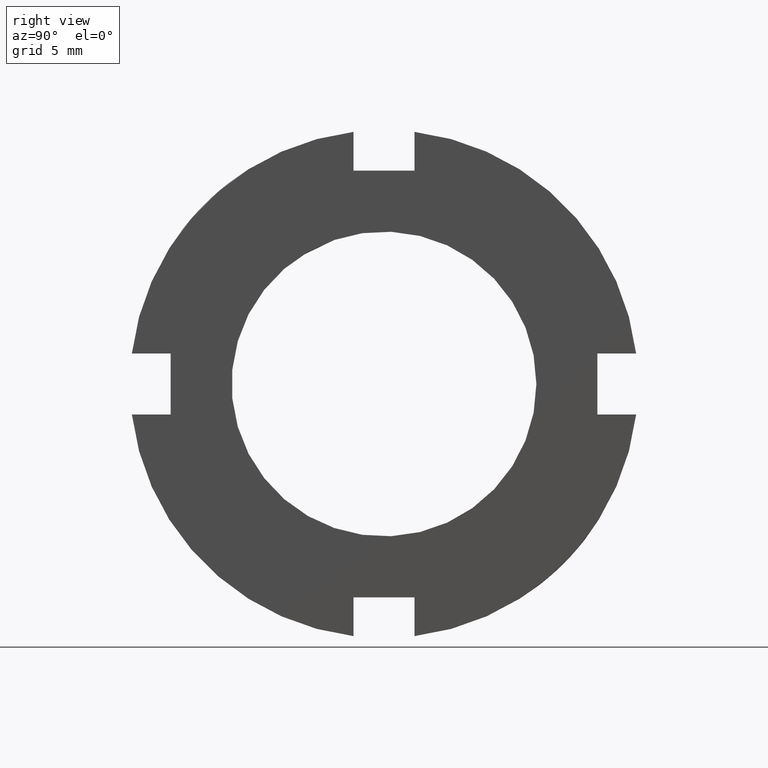
[diagram: clean part render]
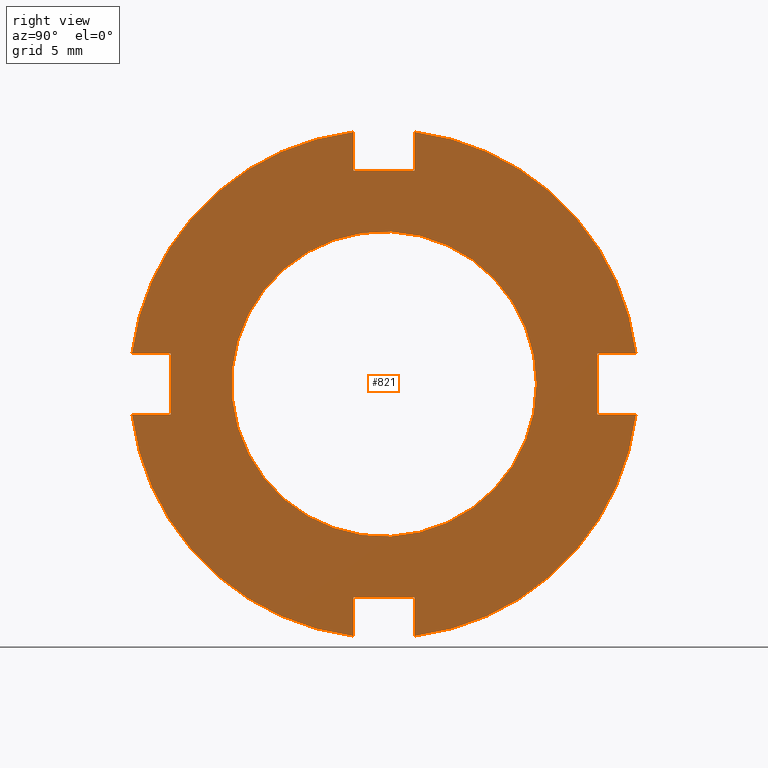
[diagram: same view with one face highlighted and labeled with its STEP entity id]
A machine part, right view. The second image highlights one B-rep face of the part: STEP entity #821.
In plain terms, the highlighted planar face has unit normal (1, 0, 0).
Its self-contained STEP definition (entity closure, byte-faithful):
#259=CARTESIAN_POINT('',(7.999999999999998,-1.500000000000002,-10.499999999999996));
#260=VERTEX_POINT('',#259);
#267=CARTESIAN_POINT('',(7.999999999999998,-1.500000000000002,-12.409673645990853));
#268=VERTEX_POINT('',#267);
#269=CARTESIAN_POINT('',(7.999999999999998,-1.500000000000002,-12.409673645990853));
#270=DIRECTION('',(0.0,0.0,1.0));
#271=VECTOR('',#270,1.909673645990857);
#272=LINE('',#269,#271);
#273=EDGE_CURVE('',#268,#260,#272,.T.);
#299=CARTESIAN_POINT('',(7.999999999999998,1.499999999999998,-12.409673645990853));
#300=VERTEX_POINT('',#299);
#307=CARTESIAN_POINT('',(7.999999999999998,1.499999999999998,-10.499999999999996));
#308=VERTEX_POINT('',#307);
#309=CARTESIAN_POINT('',(7.999999999999998,1.499999999999998,-10.499999999999996));
#310=DIRECTION('',(0.0,0.0,-1.0));
#311=VECTOR('',#310,1.909673645990857);
#312=LINE('',#309,#311);
#313=EDGE_CURVE('',#308,#300,#312,.T.);
#338=CARTESIAN_POINT('',(7.999999999999998,-1.500000000000003,-10.499999999999996));
#339=DIRECTION('',(0.0,1.0,0.0));
#340=VECTOR('',#339,3.000000000000001);
#341=LINE('',#338,#340);
#342=EDGE_CURVE('',#260,#308,#341,.T.);
#369=CARTESIAN_POINT('',(7.999999999999998,-10.499999999999996,1.500000000000001));
#370=VERTEX_POINT('',#369);
#377=CARTESIAN_POINT('',(7.999999999999998,-12.409673645990853,1.500000000000002));
#378=VERTEX_POINT('',#377);
#379=CARTESIAN_POINT('',(7.999999999999998,-12.409673645990853,1.500000000000001));
#380=DIRECTION('',(0.0,1.0,0.0));
#381=VECTOR('',#380,1.909673645990857);
#382=LINE('',#379,#381);
#383=EDGE_CURVE('',#378,#370,#382,.T.);
#409=CARTESIAN_POINT('',(7.999999999999998,-12.409673645990853,-1.499999999999998));
#410=VERTEX_POINT('',#409);
#417=CARTESIAN_POINT('',(7.999999999999998,-10.499999999999996,-1.499999999999999));
#418=VERTEX_POINT('',#417);
#419=CARTESIAN_POINT('',(7.999999999999998,-10.499999999999996,-1.499999999999999));
#420=DIRECTION('',(0.0,-1.0,0.0));
#421=VECTOR('',#420,1.909673645990857);
#422=LINE('',#419,#421);
#423=EDGE_CURVE('',#418,#410,#422,.T.);
#448=CARTESIAN_POINT('',(7.999999999999998,-10.499999999999996,1.500000000000002));
#449=DIRECTION('',(0.0,0.0,-1.0));
#450=VECTOR('',#449,3.000000000000001);
#451=LINE('',#448,#450);
#452=EDGE_CURVE('',#370,#418,#451,.T.);
#479=CARTESIAN_POINT('',(7.999999999999998,1.500000000000001,10.499999999999996));
#480=VERTEX_POINT('',#479);
#487=CARTESIAN_POINT('',(7.999999999999998,1.500000000000001,12.409673645990853));
#488=VERTEX_POINT('',#487);
#489=CARTESIAN_POINT('',(7.999999999999998,1.500000000000001,12.409673645990853));
#490=DIRECTION('',(0.0,0.0,-1.0));
#491=VECTOR('',#490,1.909673645990857);
#492=LINE('',#489,#491);
#493=EDGE_CURVE('',#488,#480,#492,.T.);
#519=CARTESIAN_POINT('',(7.999999999999998,-1.499999999999999,12.409673645990853));
#520=VERTEX_POINT('',#519);
#527=CARTESIAN_POINT('',(7.999999999999998,-1.500000000000000,10.499999999999996));
#528=VERTEX_POINT('',#527);
#529=CARTESIAN_POINT('',(7.999999999999998,-1.499999999999999,10.499999999999996));
#530=DIRECTION('',(0.0,0.0,1.0));
#531=VECTOR('',#530,1.909673645990857);
#532=LINE('',#529,#531);
#533=EDGE_CURVE('',#528,#520,#532,.T.);
#558=CARTESIAN_POINT('',(7.999999999999998,1.500000000000001,10.499999999999996));
#559=DIRECTION('',(0.0,-1.0,0.0));
#560=VECTOR('',#559,3.000000000000001);
#561=LINE('',#558,#560);
#562=EDGE_CURVE('',#480,#528,#561,.T.);
#674=CARTESIAN_POINT('',(7.999999999999998,12.409673645990853,1.500000000000000));
#675=VERTEX_POINT('',#674);
#676=CARTESIAN_POINT('',(7.999999999999998,0.0,0.0));
#677=DIRECTION('',(1.0,0.0,0.0));
#678=DIRECTION('',(0.0,1.0,0.0));
#679=AXIS2_PLACEMENT_3D('',#676,#677,#678);
#680=CIRCLE('',#679,12.499999999999996);
#681=EDGE_CURVE('',#675,#488,#680,.T.);
#699=CARTESIAN_POINT('',(7.999999999999998,0.0,0.0));
#700=DIRECTION('',(1.0,0.0,0.0));
#701=DIRECTION('',(0.0,1.0,0.0));
#702=AXIS2_PLACEMENT_3D('',#699,#700,#701);
#703=CIRCLE('',#702,12.499999999999996);
#704=EDGE_CURVE('',#520,#378,#703,.T.);
#729=CARTESIAN_POINT('',(7.999999999999998,12.409673645990853,-1.500000000000000));
#730=VERTEX_POINT('',#729);
#737=CARTESIAN_POINT('',(7.999999999999998,0.0,0.0));
#738=DIRECTION('',(1.0,0.0,0.0));
#739=DIRECTION('',(0.0,1.0,0.0));
#740=AXIS2_PLACEMENT_3D('',#737,#738,#739);
#741=CIRCLE('',#740,12.499999999999996);
#742=EDGE_CURVE('',#300,#730,#741,.T.);
#756=CARTESIAN_POINT('',(7.999999999999998,0.0,0.0));
#757=DIRECTION('',(1.0,0.0,0.0));
#758=DIRECTION('',(0.0,1.0,0.0));
#759=AXIS2_PLACEMENT_3D('',#756,#757,#758);
#760=CIRCLE('',#759,12.499999999999996);
#761=EDGE_CURVE('',#410,#268,#760,.T.);
#768=CARTESIAN_POINT('',(7.999999999999998,9.999999999999998,0.0));
#769=DIRECTION('',(1.0,0.0,0.0));
#770=DIRECTION('',(0.0,0.0,-1.0));
#771=AXIS2_PLACEMENT_3D('',#768,#769,#770);
#772=PLANE('',#771);
#773=ORIENTED_EDGE('',*,*,#273,.T.);
#774=ORIENTED_EDGE('',*,*,#342,.T.);
#775=ORIENTED_EDGE('',*,*,#313,.T.);
#776=ORIENTED_EDGE('',*,*,#742,.T.);
#777=CARTESIAN_POINT('',(7.999999999999998,10.499999999999996,-1.500000000000000));
#778=VERTEX_POINT('',#777);
#779=CARTESIAN_POINT('',(7.999999999999998,12.409673645990853,-1.500000000000000));
#780=DIRECTION('',(0.0,-1.0,0.0));
#781=VECTOR('',#780,1.909673645990857);
#782=LINE('',#779,#781);
#783=EDGE_CURVE('',#730,#778,#782,.T.);
#784=ORIENTED_EDGE('',*,*,#783,.T.);
#785=CARTESIAN_POINT('',(7.999999999999998,10.499999999999996,1.500000000000000));
#786=VERTEX_POINT('',#785);
#787=CARTESIAN_POINT('',(7.999999999999998,10.499999999999996,-1.500000000000000));
#788=DIRECTION('',(0.0,0.0,1.0));
#789=VECTOR('',#788,3.000000000000001);
#790=LINE('',#787,#789);
#791=EDGE_CURVE('',#778,#786,#790,.T.);
#792=ORIENTED_EDGE('',*,*,#791,.T.);
#793=CARTESIAN_POINT('',(7.999999999999998,10.499999999999996,1.500000000000000));
#794=DIRECTION('',(0.0,1.0,0.0));
#795=VECTOR('',#794,1.909673645990857);
#796=LINE('',#793,#795);
#797=EDGE_CURVE('',#786,#675,#796,.T.);
#798=ORIENTED_EDGE('',*,*,#797,.T.);
#799=ORIENTED_EDGE('',*,*,#681,.T.);
#800=ORIENTED_EDGE('',*,*,#493,.T.);
#801=ORIENTED_EDGE('',*,*,#562,.T.);
#802=ORIENTED_EDGE('',*,*,#533,.T.);
#803=ORIENTED_EDGE('',*,*,#704,.T.);
#804=ORIENTED_EDGE('',*,*,#383,.T.);
#805=ORIENTED_EDGE('',*,*,#452,.T.);
#806=ORIENTED_EDGE('',*,*,#423,.T.);
#807=ORIENTED_EDGE('',*,*,#761,.T.);
#808=EDGE_LOOP('',(#773,#774,#775,#776,#784,#792,#798,#799,#800,#801,#802,#803,#804,#805,#806,#807));
#809=FACE_OUTER_BOUND('',#808,.T.);
#810=CARTESIAN_POINT('',(7.999999999999997,7.500000000000000,0.0));
#811=VERTEX_POINT('',#810);
#812=CARTESIAN_POINT('',(7.999999999999997,0.0,0.0));
#813=DIRECTION('',(1.0,0.0,0.0));
#814=DIRECTION('',(0.0,1.0,0.0));
#815=AXIS2_PLACEMENT_3D('',#812,#813,#814);
#816=CIRCLE('',#815,7.500000000000000);
#817=EDGE_CURVE('',#811,#811,#816,.T.);
#818=ORIENTED_EDGE('',*,*,#817,.F.);
#819=EDGE_LOOP('',(#818));
#820=FACE_BOUND('',#819,.T.);
#821=ADVANCED_FACE('',(#809,#820),#772,.T.);